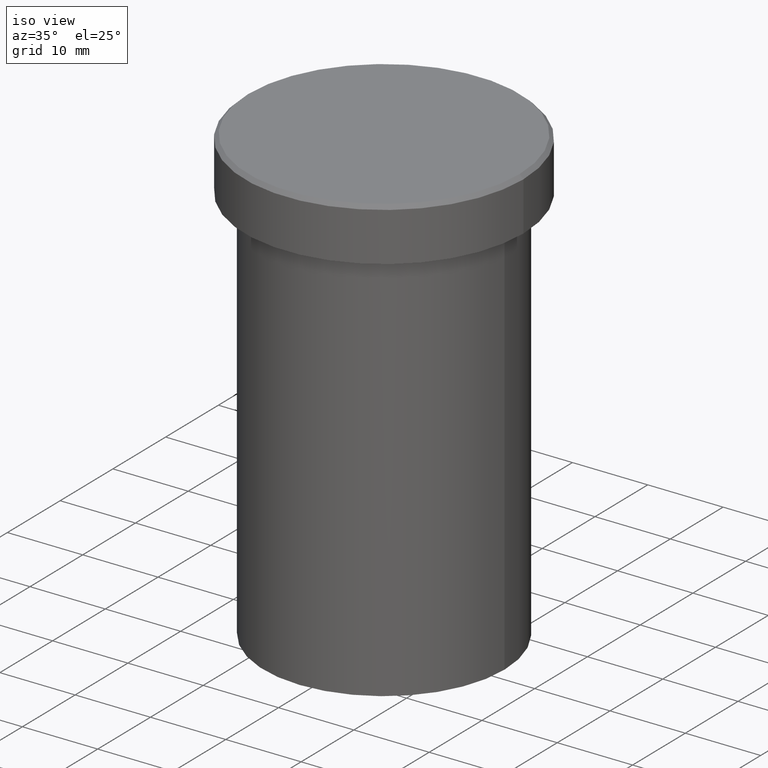
[diagram: clean part render]
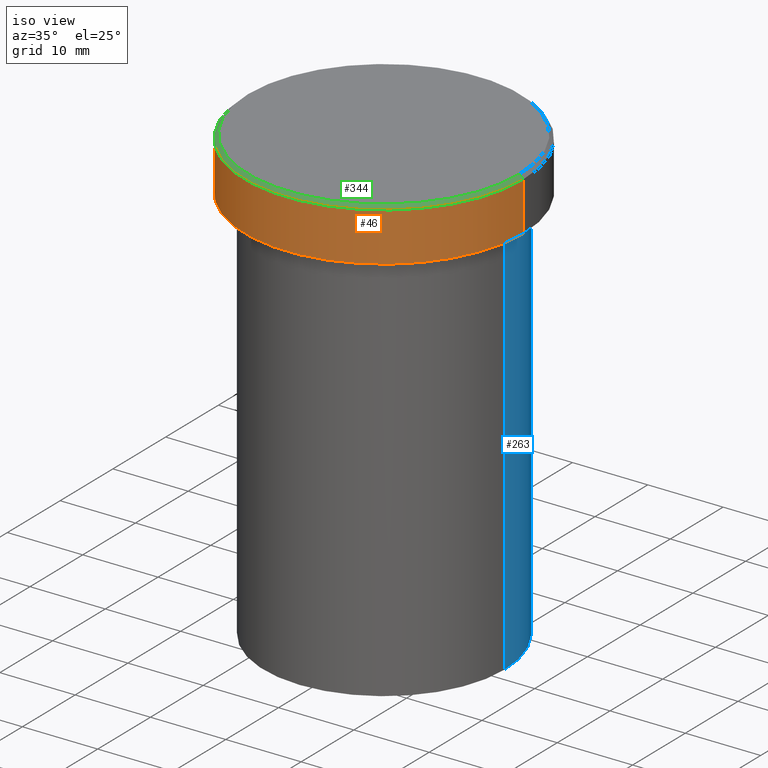
[diagram: same view with three faces highlighted in distinct colors, each labeled with its STEP entity id]
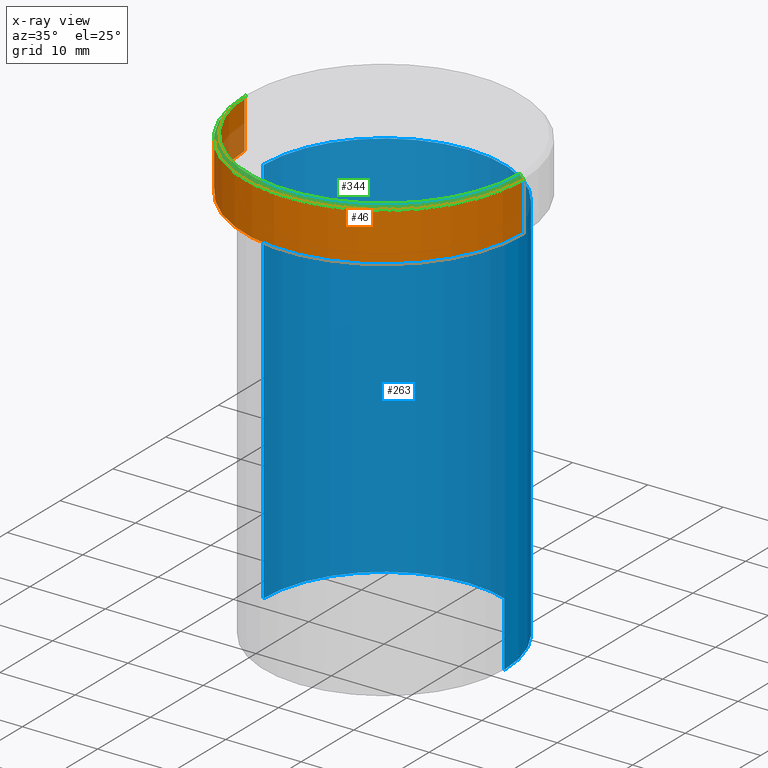
[diagram: x-ray of the same camera — body ghosted, the three highlighted faces saturated]
A machine part, iso view with three faces highlighted in distinct colors.
The next image is the same camera in x-ray (body ghosted, the three faces saturated) — at least one of them is partly hidden behind the body in this view.
Their STEP definitions:

[orange] entity #46 — the highlighted cylindrical surface (partial cylindrical patch) has radius 18.5 mm, axis along (-0, -0, 1).
#4 = EDGE_CURVE ( 'NONE', #205, #122, #215, .T. ) ;
#26 = CARTESIAN_POINT ( 'NONE',  ( 0.000000000000000000, 0.000000000000000000, -6.999999999999998224 ) ) ;
#46 = ADVANCED_FACE ( 'NONE', ( #181 ), #273, .T. ) ;
#47 = CARTESIAN_POINT ( 'NONE',  ( 18.50000000000000000, 0.000000000000000000, 0.000000000000000000 ) ) ;
#70 = VECTOR ( 'NONE', #118, 1000.000000000000000 ) ;
#91 = ORIENTED_EDGE ( 'NONE', *, *, #394, .T. ) ;
#104 = DIRECTION ( 'NONE',  ( -0.000000000000000000, -0.000000000000000000, 1.000000000000000000 ) ) ;
#106 = LINE ( 'NONE', #360, #128 ) ;
#118 = DIRECTION ( 'NONE',  ( -0.000000000000000000, -0.000000000000000000, 1.000000000000000000 ) ) ;
#122 = VERTEX_POINT ( 'NONE', #169 ) ;
#128 = VECTOR ( 'NONE', #138, 1000.000000000000000 ) ;
#133 = DIRECTION ( 'NONE',  ( -0.000000000000000000, -0.000000000000000000, 1.000000000000000000 ) ) ;
#138 = DIRECTION ( 'NONE',  ( -0.000000000000000000, -0.000000000000000000, 1.000000000000000000 ) ) ;
#151 = AXIS2_PLACEMENT_3D ( 'NONE', #26, #133, #282 ) ;
#164 = ORIENTED_EDGE ( 'NONE', *, *, #4, .T. ) ;
#169 = CARTESIAN_POINT ( 'NONE',  ( 18.50000000000000000, 0.000000000000000000, -0.4999999999999865663 ) ) ;
#171 = EDGE_CURVE ( 'NONE', #122, #221, #338, .T. ) ;
#176 = DIRECTION ( 'NONE',  ( 1.000000000000000000, 0.000000000000000000, 0.000000000000000000 ) ) ;
#181 = FACE_OUTER_BOUND ( 'NONE', #230, .T. ) ;
#205 = VERTEX_POINT ( 'NONE', #382 ) ;
#215 = LINE ( 'NONE', #47, #70 ) ;
#221 = VERTEX_POINT ( 'NONE', #357 ) ;
#230 = EDGE_LOOP ( 'NONE', ( #364, #91, #164, #407 ) ) ;
#240 = EDGE_CURVE ( 'NONE', #267, #221, #106, .T. ) ;
#243 = DIRECTION ( 'NONE',  ( 0.000000000000000000, 0.000000000000000000, -1.000000000000000000 ) ) ;
#250 = DIRECTION ( 'NONE',  ( 1.000000000000000000, 0.000000000000000000, 0.000000000000000000 ) ) ;
#255 = CIRCLE ( 'NONE', #151, 18.50000000000000000 ) ;
#267 = VERTEX_POINT ( 'NONE', #326 ) ;
#273 = CYLINDRICAL_SURFACE ( 'NONE', #309, 18.50000000000000000 ) ;
#282 = DIRECTION ( 'NONE',  ( 1.000000000000000000, 0.000000000000000000, 0.000000000000000000 ) ) ;
#294 = CARTESIAN_POINT ( 'NONE',  ( 0.000000000000000000, 0.000000000000000000, -0.4999999999999865663 ) ) ;
#309 = AXIS2_PLACEMENT_3D ( 'NONE', #346, #104, #250 ) ;
#326 = CARTESIAN_POINT ( 'NONE',  ( -18.50000000000000000, 2.265596578422603396E-15, -6.999999999999998224 ) ) ;
#338 = CIRCLE ( 'NONE', #371, 18.50000000000000000 ) ;
#346 = CARTESIAN_POINT ( 'NONE',  ( 0.000000000000000000, 0.000000000000000000, 0.000000000000000000 ) ) ;
#357 = CARTESIAN_POINT ( 'NONE',  ( -18.50000000000000000, 2.265596578422603396E-15, -0.4999999999999865663 ) ) ;
#360 = CARTESIAN_POINT ( 'NONE',  ( -18.50000000000000000, 2.265596578422603396E-15, 0.000000000000000000 ) ) ;
#364 = ORIENTED_EDGE ( 'NONE', *, *, #240, .F. ) ;
#371 = AXIS2_PLACEMENT_3D ( 'NONE', #294, #243, #176 ) ;
#382 = CARTESIAN_POINT ( 'NONE',  ( 18.50000000000000000, 0.000000000000000000, -6.999999999999998224 ) ) ;
#394 = EDGE_CURVE ( 'NONE', #267, #205, #255, .T. ) ;
#407 = ORIENTED_EDGE ( 'NONE', *, *, #171, .T. ) ;

[blue] entity #263 — the highlighted cylindrical surface (partial cylindrical patch) has radius 16 mm, axis along (-0, -0, 1).
#44 = VERTEX_POINT ( 'NONE', #147 ) ;
#76 = DIRECTION ( 'NONE',  ( -0.000000000000000000, -0.000000000000000000, 1.000000000000000000 ) ) ;
#79 = DIRECTION ( 'NONE',  ( -0.000000000000000000, -0.000000000000000000, 1.000000000000000000 ) ) ;
#83 = CARTESIAN_POINT ( 'NONE',  ( 0.000000000000000000, 0.000000000000000000, -60.00000000000000000 ) ) ;
#100 = CIRCLE ( 'NONE', #229, 16.00000000000000000 ) ;
#111 = LINE ( 'NONE', #239, #409 ) ;
#113 = ORIENTED_EDGE ( 'NONE', *, *, #150, .T. ) ;
#147 = CARTESIAN_POINT ( 'NONE',  ( 16.00000000000000000, 0.000000000000000000, -60.00000000000000000 ) ) ;
#150 = EDGE_CURVE ( 'NONE', #292, #234, #330, .T. ) ;
#177 = VECTOR ( 'NONE', #290, 1000.000000000000000 ) ;
#204 = DIRECTION ( 'NONE',  ( 1.000000000000000000, 0.000000000000000000, 0.000000000000000000 ) ) ;
#211 = AXIS2_PLACEMENT_3D ( 'NONE', #269, #76, #204 ) ;
#220 = EDGE_CURVE ( 'NONE', #44, #292, #280, .T. ) ;
#228 = CARTESIAN_POINT ( 'NONE',  ( 0.000000000000000000, 0.000000000000000000, -8.000000000000000000 ) ) ;
#229 = AXIS2_PLACEMENT_3D ( 'NONE', #228, #312, #316 ) ;
#231 = EDGE_LOOP ( 'NONE', ( #297, #113, #356, #358 ) ) ;
#234 = VERTEX_POINT ( 'NONE', #296 ) ;
#239 = CARTESIAN_POINT ( 'NONE',  ( 16.00000000000000000, 0.000000000000000000, 0.000000000000000000 ) ) ;
#261 = AXIS2_PLACEMENT_3D ( 'NONE', #83, #396, #266 ) ;
#263 = ADVANCED_FACE ( 'NONE', ( #322 ), #353, .T. ) ;
#264 = CARTESIAN_POINT ( 'NONE',  ( -16.00000000000000000, 1.959434878635765131E-15, 0.000000000000000000 ) ) ;
#266 = DIRECTION ( 'NONE',  ( 1.000000000000000000, 0.000000000000000000, 0.000000000000000000 ) ) ;
#269 = CARTESIAN_POINT ( 'NONE',  ( 0.000000000000000000, 0.000000000000000000, 0.000000000000000000 ) ) ;
#279 = EDGE_CURVE ( 'NONE', #44, #350, #111, .T. ) ;
#280 = CIRCLE ( 'NONE', #261, 16.00000000000000000 ) ;
#290 = DIRECTION ( 'NONE',  ( -0.000000000000000000, -0.000000000000000000, 1.000000000000000000 ) ) ;
#292 = VERTEX_POINT ( 'NONE', #305 ) ;
#296 = CARTESIAN_POINT ( 'NONE',  ( -16.00000000000000000, 1.959434878635765131E-15, -8.000000000000000000 ) ) ;
#297 = ORIENTED_EDGE ( 'NONE', *, *, #220, .T. ) ;
#305 = CARTESIAN_POINT ( 'NONE',  ( -16.00000000000000000, 1.959434878635765131E-15, -60.00000000000000000 ) ) ;
#311 = CARTESIAN_POINT ( 'NONE',  ( 16.00000000000000000, 0.000000000000000000, -8.000000000000000000 ) ) ;
#312 = DIRECTION ( 'NONE',  ( -0.000000000000000000, -0.000000000000000000, 1.000000000000000000 ) ) ;
#316 = DIRECTION ( 'NONE',  ( 1.000000000000000000, 0.000000000000000000, 0.000000000000000000 ) ) ;
#322 = FACE_OUTER_BOUND ( 'NONE', #231, .T. ) ;
#330 = LINE ( 'NONE', #264, #177 ) ;
#350 = VERTEX_POINT ( 'NONE', #311 ) ;
#353 = CYLINDRICAL_SURFACE ( 'NONE', #211, 16.00000000000000000 ) ;
#356 = ORIENTED_EDGE ( 'NONE', *, *, #361, .F. ) ;
#358 = ORIENTED_EDGE ( 'NONE', *, *, #279, .F. ) ;
#361 = EDGE_CURVE ( 'NONE', #350, #234, #100, .T. ) ;
#396 = DIRECTION ( 'NONE',  ( -0.000000000000000000, -0.000000000000000000, 1.000000000000000000 ) ) ;
#409 = VECTOR ( 'NONE', #79, 1000.000000000000000 ) ;

[green] entity #344 — the highlighted conical surface has half-angle 45 deg.
#2 = ORIENTED_EDGE ( 'NONE', *, *, #13, .T. ) ;
#13 = EDGE_CURVE ( 'NONE', #41, #221, #184, .T. ) ;
#14 = CARTESIAN_POINT ( 'NONE',  ( -18.00000000000001421, 0.000000000000000000, 0.000000000000000000 ) ) ;
#27 = AXIS2_PLACEMENT_3D ( 'NONE', #218, #374, #225 ) ;
#34 = LINE ( 'NONE', #314, #244 ) ;
#41 = VERTEX_POINT ( 'NONE', #14 ) ;
#56 = VECTOR ( 'NONE', #398, 1000.000000000000114 ) ;
#77 = ORIENTED_EDGE ( 'NONE', *, *, #82, .F. ) ;
#82 = EDGE_CURVE ( 'NONE', #389, #122, #34, .T. ) ;
#92 = EDGE_CURVE ( 'NONE', #41, #389, #161, .T. ) ;
#107 = EDGE_LOOP ( 'NONE', ( #77, #252, #2, #238 ) ) ;
#122 = VERTEX_POINT ( 'NONE', #169 ) ;
#129 = CARTESIAN_POINT ( 'NONE',  ( 0.000000000000000000, 0.000000000000000000, 0.000000000000000000 ) ) ;
#161 = CIRCLE ( 'NONE', #27, 18.00000000000001421 ) ;
#169 = CARTESIAN_POINT ( 'NONE',  ( 18.50000000000000000, 0.000000000000000000, -0.4999999999999865663 ) ) ;
#171 = EDGE_CURVE ( 'NONE', #122, #221, #338, .T. ) ;
#176 = DIRECTION ( 'NONE',  ( 1.000000000000000000, 0.000000000000000000, 0.000000000000000000 ) ) ;
#184 = LINE ( 'NONE', #392, #56 ) ;
#194 = CARTESIAN_POINT ( 'NONE',  ( 18.00000000000001421, 2.234980408443920793E-15, 0.000000000000000000 ) ) ;
#198 = DIRECTION ( 'NONE',  ( 0.7071067811865451302, 8.659560562354903276E-17, -0.7071067811865500152 ) ) ;
#218 = CARTESIAN_POINT ( 'NONE',  ( 0.000000000000000000, 0.000000000000000000, 0.000000000000000000 ) ) ;
#221 = VERTEX_POINT ( 'NONE', #357 ) ;
#225 = DIRECTION ( 'NONE',  ( 1.000000000000000000, 0.000000000000000000, 0.000000000000000000 ) ) ;
#238 = ORIENTED_EDGE ( 'NONE', *, *, #171, .F. ) ;
#243 = DIRECTION ( 'NONE',  ( 0.000000000000000000, 0.000000000000000000, -1.000000000000000000 ) ) ;
#244 = VECTOR ( 'NONE', #198, 1000.000000000000114 ) ;
#252 = ORIENTED_EDGE ( 'NONE', *, *, #92, .F. ) ;
#288 = DIRECTION ( 'NONE',  ( -1.000000000000000000, 0.000000000000000000, 0.000000000000000000 ) ) ;
#294 = CARTESIAN_POINT ( 'NONE',  ( 0.000000000000000000, 0.000000000000000000, -0.4999999999999865663 ) ) ;
#310 = CONICAL_SURFACE ( 'NONE', #362, 18.00000000000001421, 0.7853981633974447263 ) ;
#314 = CARTESIAN_POINT ( 'NONE',  ( 18.00000000000001421, 2.204364238465237794E-15, 0.000000000000000000 ) ) ;
#338 = CIRCLE ( 'NONE', #371, 18.50000000000000000 ) ;
#344 = ADVANCED_FACE ( 'NONE', ( #367 ), #310, .T. ) ;
#357 = CARTESIAN_POINT ( 'NONE',  ( -18.50000000000000000, 2.265596578422603396E-15, -0.4999999999999865663 ) ) ;
#362 = AXIS2_PLACEMENT_3D ( 'NONE', #129, #378, #288 ) ;
#367 = FACE_OUTER_BOUND ( 'NONE', #107, .T. ) ;
#371 = AXIS2_PLACEMENT_3D ( 'NONE', #294, #243, #176 ) ;
#374 = DIRECTION ( 'NONE',  ( -0.000000000000000000, -0.000000000000000000, 1.000000000000000000 ) ) ;
#378 = DIRECTION ( 'NONE',  ( 0.000000000000000000, 0.000000000000000000, -1.000000000000000000 ) ) ;
#389 = VERTEX_POINT ( 'NONE', #194 ) ;
#392 = CARTESIAN_POINT ( 'NONE',  ( -18.00000000000001421, 0.000000000000000000, 0.000000000000000000 ) ) ;
#398 = DIRECTION ( 'NONE',  ( -0.7071067811865451302, 0.000000000000000000, -0.7071067811865500152 ) ) ;